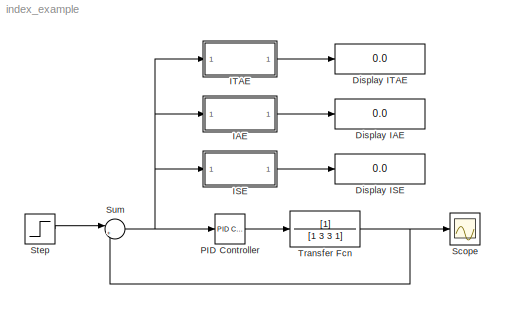
MODEL index_example
KIND model
BLOCK [Display] Display IAE
  Decimation = 1
  Lockdown = off
  Ports = [1]
BLOCK [Display] Display ISE
  Decimation = 1
  Lockdown = off
  Ports = [1]
BLOCK [Display] Display ITAE
  Decimation = 1
  Lockdown = off
  Ports = [1]
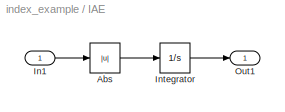
BLOCK [SubSystem] IAE
  FunctionWithSeparateData = off
  MaskDescription = IAE performacne index\n\noutput = int |input| dt
  MaskDisplay = disp('IAE')\nport_label('input',1,'e')\nport_label('output',1,'iae')
  MaskIconFrame = on
  MaskIconOpaque = on
  MaskIconRotate = none
  MaskIconUnits = autoscale
  MinAlgLoopOccurrences = off
  Ports = [1, 1]
  RTWSystemCode = Auto
BLOCK [Abs] IAE/Abs
  SaturateOnIntegerOverflow = off
BLOCK [Inport] IAE/In1
  IconDisplay = Port number
BLOCK [Integrator] IAE/Integrator
  Ports = [1, 1]
BLOCK [Outport] IAE/Out1
  IconDisplay = Port number
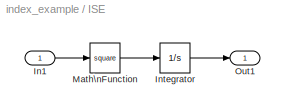
BLOCK [SubSystem] ISE
  FunctionWithSeparateData = off
  MaskDescription = ISE performance index\n\noutput = int (input)^2 dt
  MaskDisplay = disp('ISE')\nport_label('input',1,'e')\nport_label('output',1,'ise')
  MaskIconFrame = on
  MaskIconOpaque = on
  MaskIconRotate = none
  MaskIconUnits = autoscale
  MinAlgLoopOccurrences = off
  Ports = [1, 1]
  RTWSystemCode = Auto
BLOCK [Inport] ISE/In1
  IconDisplay = Port number
BLOCK [Integrator] ISE/Integrator
  Ports = [1, 1]
BLOCK [Math] ISE/Math\nFunction
  Operator = square
  OutDataType = sfix(16)
  OutScaling = 2^0
  Ports = [1, 1]
BLOCK [Outport] ISE/Out1
  IconDisplay = Port number
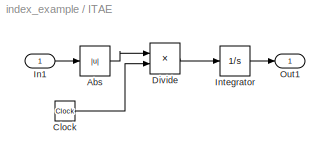
BLOCK [SubSystem] ITAE
  FunctionWithSeparateData = off
  MaskDescription = ITAE performance index\n\noutput = int t|input| dt
  MaskDisplay = disp('ITAE')\nport_label('input',1,'e')\nport_label('output',1,'itae')
  MaskIconFrame = on
  MaskIconOpaque = on
  MaskIconRotate = none
  MaskIconUnits = autoscale
  MinAlgLoopOccurrences = off
  Ports = [1, 1]
  RTWSystemCode = Auto
BLOCK [Abs] ITAE/Abs
  SaturateOnIntegerOverflow = off
BLOCK [Clock] ITAE/Clock
  Decimation = 10
BLOCK [Product] ITAE/Divide
  InputSameDT = off
  Inputs = **
  OutDataType = sfix(16)
  OutDataTypeMode = Inherit via internal rule
  OutScaling = 2^-10
  Ports = [2, 1]
  RndMeth = Floor
  SaturateOnIntegerOverflow = off
BLOCK [Inport] ITAE/In1
  IconDisplay = Port number
BLOCK [Integrator] ITAE/Integrator
  Ports = [1, 1]
BLOCK [Outport] ITAE/Out1
  IconDisplay = Port number
BLOCK [Reference] PID Controller  REF=simulink_extras/Additional\nLinear/PID Controller
  D = 0
  FunctionWithSeparateData = off
  I = 1
  P = 2
  Ports = [1, 1]
  RTWMemSecDataConstants = Inherit from model
  RTWMemSecDataInternal = Inherit from model
  RTWMemSecDataParameters = Inherit from model
  RTWMemSecFuncExecute = Inherit from model
  RTWMemSecFuncInitTerm = Inherit from model
  ShowPortLabels = FromPortIcon
  SourceBlock = simulink_extras/Additional\nLinear/PID Controller
  SourceType = PID Controller
  SystemSampleTime = -1
BLOCK [Scope] Scope
  DataFormat = StructureWithTime
  Floating = off
  NumInputPorts = 1
  Ports = [1]
  SampleTime = 0
BLOCK [Step] Step
  SampleTime = 0
BLOCK [Sum] Sum
  IconShape = round
  InputSameDT = off
  Inputs = |+-
  OutDataType = sfix(16)
  OutDataTypeMode = Inherit via internal rule
  OutScaling = 2^0
  Ports = [2, 1]
  SaturateOnIntegerOverflow = off
BLOCK [TransferFcn] Transfer Fcn
  Denominator = [1 3 3 1]
LINE IAE/Abs:1 -> IAE/Integrator:1
LINE IAE/In1:1 -> IAE/Abs:1
LINE IAE/Integrator:1 -> IAE/Out1:1
LINE IAE:1 -> Display IAE:1
LINE ISE/In1:1 -> ISE/Math\nFunction:1
LINE ISE/Integrator:1 -> ISE/Out1:1
LINE ISE/Math\nFunction:1 -> ISE/Integrator:1
LINE ISE:1 -> Display ISE:1
LINE ITAE/Abs:1 -> ITAE/Divide:1
LINE ITAE/Clock:1 -> ITAE/Divide:2
LINE ITAE/Divide:1 -> ITAE/Integrator:1
LINE ITAE/In1:1 -> ITAE/Abs:1
LINE ITAE/Integrator:1 -> ITAE/Out1:1
LINE ITAE:1 -> Display ITAE:1
LINE PID Controller:1 -> Transfer Fcn:1
LINE Step:1 -> Sum:1
NET Sum:1 -> IAE:1, ISE:1, ITAE:1, PID Controller:1
NET Transfer Fcn:1 -> Scope:1, Sum:2
note: NET lines group one-source signal fan-out (src -> all destinations, sorted); 1:1 wires keep LINE
